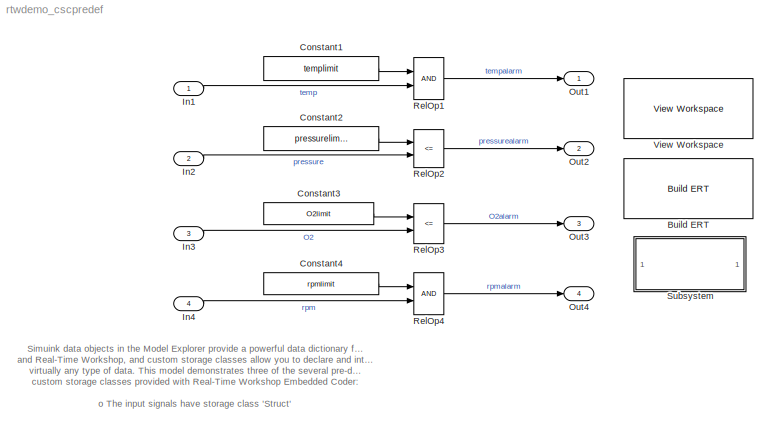
MODEL rtwdemo_cscpredef
KIND model
CONFIG PostLoadFcn = rtwdemo_cscpredef_data;
BLOCK [Reference] Build ERT  REF=rtwdemowidgets/Build ERT
  Ports = []
  ShowPortLabels = on
  SourceBlock = rtwdemowidgets/Build ERT
  attrib_overrides = {}
BLOCK [Constant] Constant1
  Value = templimit
BLOCK [Constant] Constant2
  Value = pressurelimit
BLOCK [Constant] Constant3
  Value = O2limit
BLOCK [Constant] Constant4
  Value = rpmlimit
BLOCK [Inport] In1
  IconDisplay = Port number
  LatchInput = off
  Port = 1
BLOCK [Inport] In2
  IconDisplay = Port number
  LatchInput = off
  Port = 2
BLOCK [Inport] In3
  IconDisplay = Port number
  LatchInput = off
  Port = 3
BLOCK [Inport] In4
  IconDisplay = Port number
  LatchInput = off
  Port = 4
BLOCK [Outport] Out1
  BusOutputAsStruct = off
  IconDisplay = Port number
BLOCK [Outport] Out2
  BusOutputAsStruct = off
  IconDisplay = Port number
  Port = 2
BLOCK [Outport] Out3
  BusOutputAsStruct = off
  IconDisplay = Port number
  Port = 3
BLOCK [Outport] Out4
  BusOutputAsStruct = off
  IconDisplay = Port number
  Port = 4
BLOCK [RelationalOperator] RelOp1
BLOCK [RelationalOperator] RelOp2
  Operator = <=
BLOCK [RelationalOperator] RelOp3
  Operator = <=
BLOCK [RelationalOperator] RelOp4
BLOCK [SubSystem] Subsystem
  MaskDisplay = text(.05,.5,['License\\nRequirements ..','.'])
  MaskIconFrame = on
  MaskIconOpaque = on
  MaskIconRotate = none
  MaskIconUnits = normalized
  MinAlgLoopOccurrences = off
  Ports = []
  PropExecContextAcrossSSBoundary = on
  RTWSystemCode = Auto
  TreatAsAtomicUnit = off
BLOCK [Reference] View Workspace  REF=rtwdemowidgets/View Workspace
  Ports = []
  ShowPortLabels = on
  SourceBlock = rtwdemowidgets/View Workspace
ANNOTATION (root): Simuink data objects in the Model Explorer provide a powerful data dictionary for Simulink\nand Real-Time Workshop, and custom storage classes allow you to declare and interface with\nvirtually any type of data. This model demonstrates three of the several pre-defined\ncustom storage classes provided with Real-Time Workshop Embedded Coder: \n\no The input signals have storage class 'Struct'\no The...<+254ch>
ANNOTATION Subsystem: You can define, create, and simulate models with Custom Storage Classes with a Simulink license. However,\nfor the properties to take effect in the generated code, a Real-Time Workshop Embedded Coder license is\nrequired. When generating code for models without an Embedded Coder license the properties are\nignored (i.e., the custom storage class value defaults to auto storage.) In other words, Cus...<+49ch>
LINE Constant1:1 -> RelOp1:1
LINE Constant2:1 -> RelOp2:1
LINE Constant3:1 -> RelOp3:1
LINE Constant4:1 -> RelOp4:1
LINE In1:1 -> RelOp1:2
LINE In2:1 -> RelOp2:2
LINE In3:1 -> RelOp3:2
LINE In4:1 -> RelOp4:2
LINE RelOp1:1 -> Out1:1
LINE RelOp2:1 -> Out2:1
LINE RelOp3:1 -> Out3:1
LINE RelOp4:1 -> Out4:1
